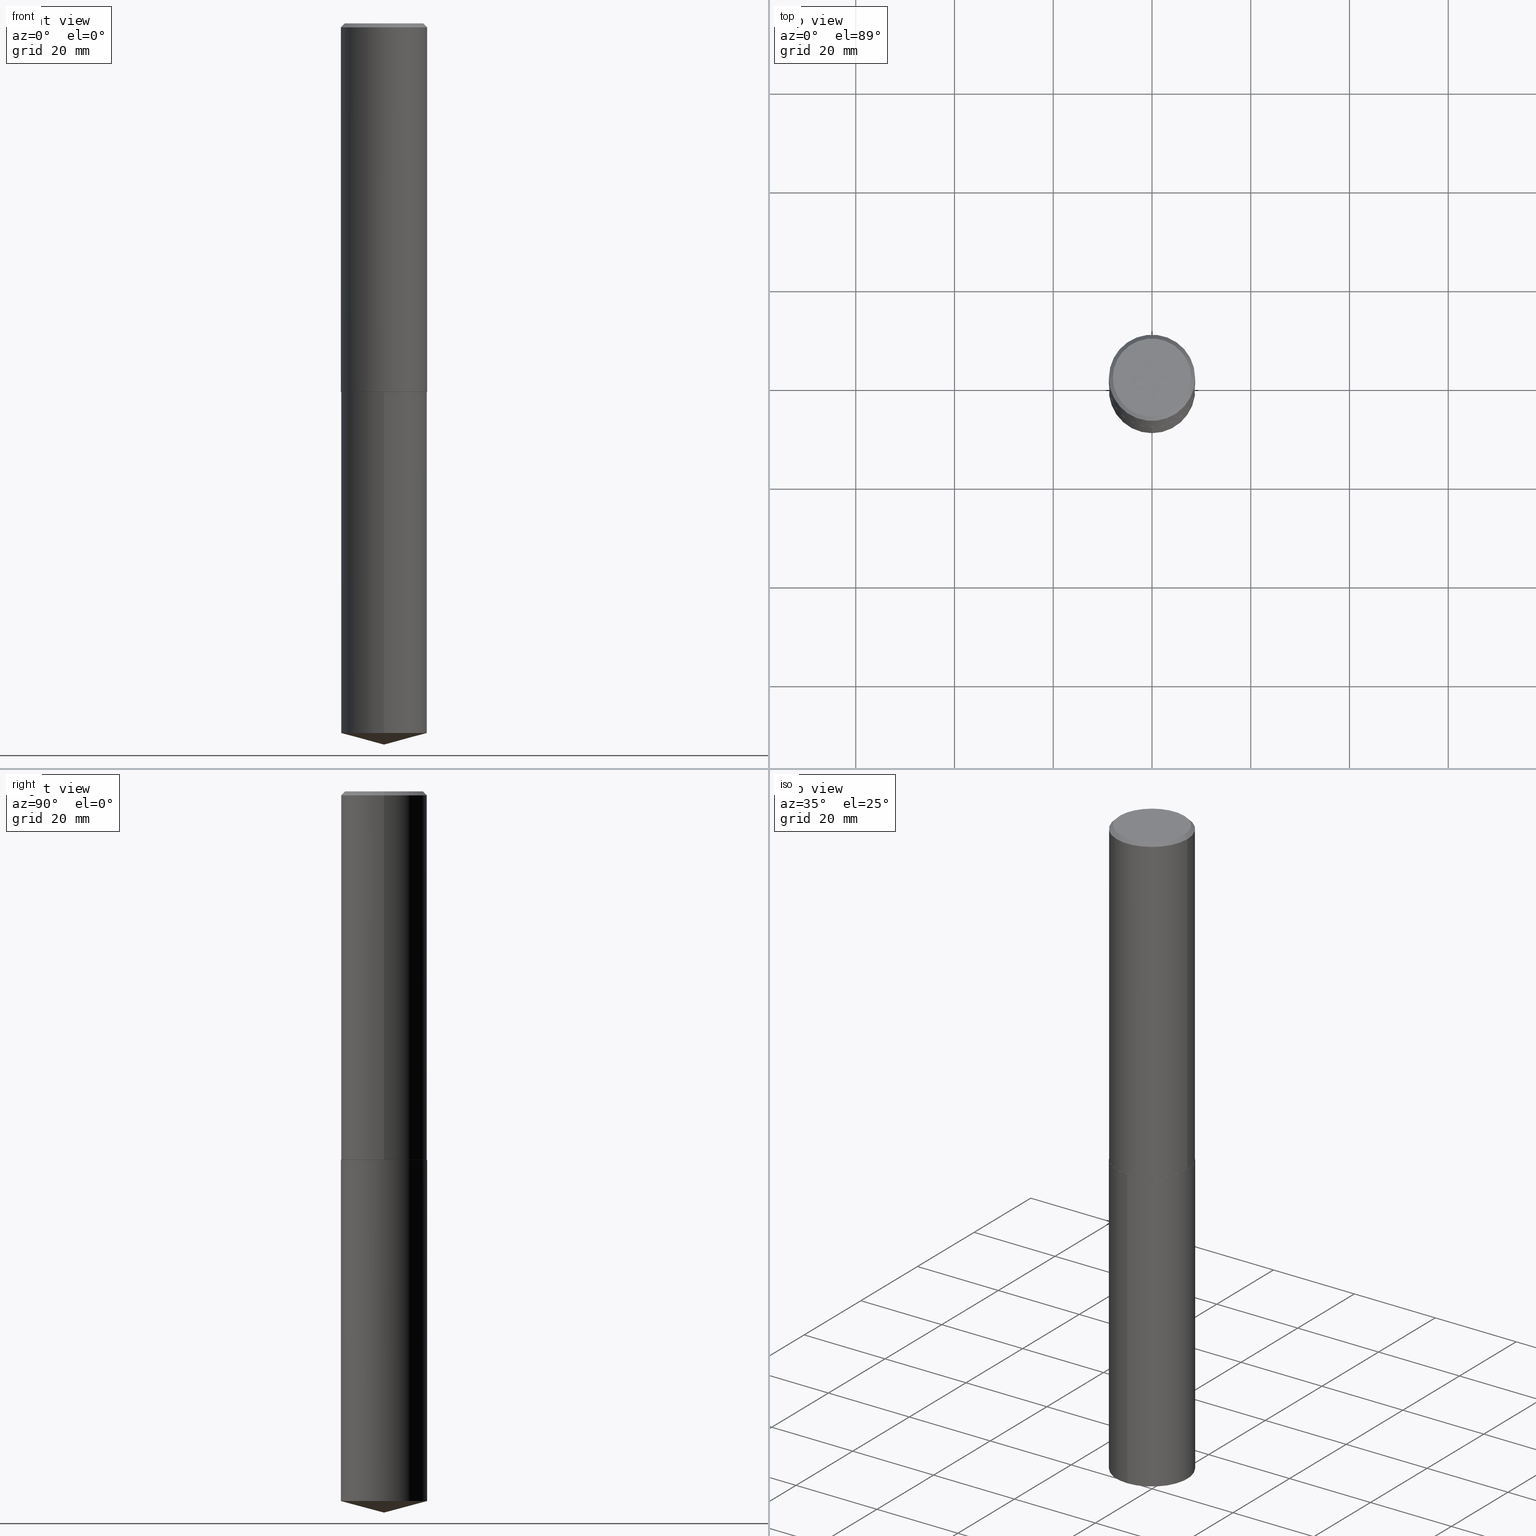
[diagram: canonical four-view strip — front | top / right | iso, engineering-drawing reading convention]
A machine part, canonical four-view strip (front | top / right | iso — engineering-drawing reading convention). The complete STEP part file that produces these views, byte-faithful:
ISO-10303-21;
HEADER;
FILE_DESCRIPTION (( 'STEP AP203' ),
    '1' );
FILE_NAME ('58102.STEP',
    '2024-04-23T02:02:48',
    ( '' ),
    ( '' ),
    'SwSTEP 2.0',
    'SolidWorks 2023',
    '' );
FILE_SCHEMA (( 'CONFIG_CONTROL_DESIGN' ));
ENDSEC;

DATA;
#1 = CARTESIAN_POINT ( 'NONE',  ( -2.400393420454582001E-15, -0.3437500000000102141, -2.937499999999998224 ) ) ;
#2 = APPLICATION_PROTOCOL_DEFINITION ( 'international standard', 'config_control_design', 1994, #27 ) ;
#3 = CARTESIAN_POINT ( 'NONE',  ( 7.183564618168836511E-29, -1.025622643285173815E-14, -2.937499999999999556 ) ) ;
#4 = LINE ( 'NONE', #243, #282 ) ;
#5 = DIRECTION ( 'NONE',  ( 1.000000000000000000, -6.982962677686266711E-15, 0.000000000000000000 ) ) ;
#6 = CARTESIAN_POINT ( 'NONE',  ( 7.183564618168836511E-29, -1.025622643285173815E-14, -2.937499999999999556 ) ) ;
#7 = EDGE_CURVE ( 'NONE', #53, #125, #204, .T. ) ;
#8 = CARTESIAN_POINT ( 'NONE',  ( 7.183564618168836511E-29, -1.025622643285173815E-14, -2.937499999999999556 ) ) ;
#9 = CALENDAR_DATE ( 2024, 22, 4 ) ;
#10 = DATE_TIME_ROLE ( 'classification_date' ) ;
#11 = PERSON_AND_ORGANIZATION_ROLE ( 'design_owner' ) ;
#12 = CARTESIAN_POINT ( 'NONE',  ( -4.679430540483315256E-47, 6.680986634214010139E-33, 1.913510623667735920E-18 ) ) ;
#13 = AXIS2_PLACEMENT_3D ( 'NONE', #367, #104, #35 ) ;
#14 = CYLINDRICAL_SURFACE ( 'NONE', #150, 0.3437500000000000000 ) ;
#15 = FACE_OUTER_BOUND ( 'NONE', #18, .T. ) ;
#16 = AXIS2_PLACEMENT_3D ( 'NONE', #192, #67, #200 ) ;
#17 = CC_DESIGN_PERSON_AND_ORGANIZATION_ASSIGNMENT ( #377, #260, ( #36 ) ) ;
#18 = EDGE_LOOP ( 'NONE', ( #298, #120, #62, #188 ) ) ;
#19 = EDGE_LOOP ( 'NONE', ( #129, #177, #293, #54 ) ) ;
#20 = VERTEX_POINT ( 'NONE', #307 ) ;
#21 = AXIS2_PLACEMENT_3D ( 'NONE', #77, #47, #179 ) ;
#22 = DATE_TIME_ROLE ( 'creation_date' ) ;
#23 = UNCERTAINTY_MEASURE_WITH_UNIT (LENGTH_MEASURE( 1.000000000000000082E-05 ), #259, 'distance_accuracy_value', 'NONE');
#24 = ORIENTED_EDGE ( 'NONE', *, *, #266, .T. ) ;
#25 = PERSON_AND_ORGANIZATION ( #183, #388 ) ;
#26 = DIRECTION ( 'NONE',  ( 0.000000000000000000, 0.000000000000000000, 1.000000000000000000 ) ) ;
#27 = APPLICATION_CONTEXT ( 'configuration controlled 3d designs of mechanical parts and assemblies' ) ;
#28 = CIRCLE ( 'NONE', #89, 0.3432500000000007767 ) ;
#29 = EDGE_CURVE ( 'NONE', #239, #325, #292, .T. ) ;
#30 = DIRECTION ( 'NONE',  ( 6.863315791527703726E-15, 0.9659258262890707547, 0.2588190451025115801 ) ) ;
#31 = DIRECTION ( 'NONE',  ( 2.438088387897960049E-29, -3.491481338843145188E-15, -1.000000000000000000 ) ) ;
#32 = DIRECTION ( 'NONE',  ( 1.000000000000000000, -6.982962677686265922E-15, 4.876176775795935793E-29 ) ) ;
#33 = CC_DESIGN_PERSON_AND_ORGANIZATION_ASSIGNMENT ( #207, #11, ( #385 ) ) ;
#34 = AXIS2_PLACEMENT_3D ( 'NONE', #6, #139, #32 ) ;
#35 = DIRECTION ( 'NONE',  ( -6.982962677686265922E-15, -1.000000000000000000, 3.178877665354778874E-15 ) ) ;
#36 = SECURITY_CLASSIFICATION ( '', '', #374 ) ;
#37 = DIRECTION ( 'NONE',  ( -2.445468806185136877E-29, 3.491481338843145188E-15, 1.000000000000000000 ) ) ;
#38 = CARTESIAN_POINT ( 'NONE',  ( -9.358861080966630512E-47, 1.336197326842802028E-32, 3.827021247335471839E-18 ) ) ;
#39 = PERSON_AND_ORGANIZATION_ROLE ( 'design_supplier' ) ;
#40 = DIMENSIONAL_EXPONENTS ( 1.000000000000000000, 0.000000000000000000, 0.000000000000000000, 0.000000000000000000, 0.000000000000000000, 0.000000000000000000, 0.000000000000000000 ) ;
#41 = DIRECTION ( 'NONE',  ( -2.445468806185136597E-29, 3.491481338843145583E-15, 1.000000000000000000 ) ) ;
#42 = DIRECTION ( 'NONE',  ( -6.982962677686265922E-15, -1.000000000000000000, 3.178877665354778874E-15 ) ) ;
#43 = APPROVAL_ROLE ( '' ) ;
#44 = EDGE_CURVE ( 'NONE', #153, #353, #65, .T. ) ;
#45 = FACE_OUTER_BOUND ( 'NONE', #154, .T. ) ;
#46 = CARTESIAN_POINT ( 'NONE',  ( 7.182341883765743709E-29, -1.025448069218231586E-14, -2.936999999999999389 ) ) ;
#47 = DIRECTION ( 'NONE',  ( 2.445828463241445010E-29, -3.490966289468102925E-15, -1.000000000000000000 ) ) ;
#48 = DIRECTION ( 'NONE',  ( -6.982962677686265922E-15, -1.000000000000000000, 3.178877665354778874E-15 ) ) ;
#49 = APPROVAL ( #66, 'UNSPECIFIED' ) ;
#50 = AXIS2_PLACEMENT_3D ( 'NONE', #38, #220, #105 ) ;
#51 = ORIENTED_EDGE ( 'NONE', *, *, #7, .F. ) ;
#52 = EDGE_CURVE ( 'NONE', #214, #53, #308, .T. ) ;
#53 = VERTEX_POINT ( 'NONE', #194 ) ;
#54 = ORIENTED_EDGE ( 'NONE', *, *, #156, .F. ) ;
#55 = PERSON_AND_ORGANIZATION_ROLE ( 'creator' ) ;
#56 = CC_DESIGN_APPROVAL ( #49, ( #36 ) ) ;
#57 = ORIENTED_EDGE ( 'NONE', *, *, #287, .T. ) ;
#58 = FACE_OUTER_BOUND ( 'NONE', #198, .T. ) ;
#59 = EDGE_LOOP ( 'NONE', ( #288, #330 ) ) ;
#60 = PRODUCT_DEFINITION_SHAPE ( 'NONE', 'NONE',  #203 ) ;
#61 = CIRCLE ( 'NONE', #213, 0.3437500000000000000 ) ;
#62 = ORIENTED_EDGE ( 'NONE', *, *, #236, .T. ) ;
#63 = CARTESIAN_POINT ( 'NONE',  ( -0.3432500000000007767, -7.814639265181078728E-15, -2.937499999999999556 ) ) ;
#64 = APPROVAL ( #273, 'UNSPECIFIED' ) ;
#65 = LINE ( 'NONE', #227, #267 ) ;
#66 = APPROVAL_STATUS ( 'not_yet_approved' ) ;
#67 = DIRECTION ( 'NONE',  ( -2.445468806185136597E-29, 3.491481338843145583E-15, 1.000000000000000000 ) ) ;
#68 = PERSON_AND_ORGANIZATION ( #183, #388 ) ;
#69 = CARTESIAN_POINT ( 'NONE',  ( 1.383717794050239088E-28, -1.975302482264516971E-14, -5.657892465101803658 ) ) ;
#70 = CIRCLE ( 'NONE', #303, 0.3125000000000000000 ) ;
#71 = DIRECTION ( 'NONE',  ( -1.000000000000000000, 6.982962677686265922E-15, 0.000000000000000000 ) ) ;
#72 = LENGTH_MEASURE_WITH_UNIT ( LENGTH_MEASURE( 0.02539999999999999897 ), #311 );
#73 = PLANE ( 'NONE',  #21 ) ;
#74 = DIRECTION ( 'NONE',  ( -1.000000000000000000, 6.982962677686265922E-15, 0.000000000000000000 ) ) ;
#75 = DIRECTION ( 'NONE',  ( -2.445468806185136597E-29, 3.491481338843145583E-15, 1.000000000000000000 ) ) ;
#76 = CONICAL_SURFACE ( 'NONE', #137, 146.9311341562585369, 1.308996938995753201 ) ;
#77 = CARTESIAN_POINT ( 'NONE',  ( 7.183564618168836511E-29, -1.025622643285173815E-14, -2.937499999999999556 ) ) ;
#78 = CIRCLE ( 'NONE', #184, 0.3437500000000000000 ) ;
#79 = DIRECTION ( 'NONE',  ( 1.000000000000000000, -6.982962677686265922E-15, 0.000000000000000000 ) ) ;
#80 = CARTESIAN_POINT ( 'NONE',  ( 7.182341883765743709E-29, -1.025448069218231586E-14, -2.936999999999999389 ) ) ;
#81 = ADVANCED_FACE ( 'NONE', ( #304 ), #161, .F. ) ;
#82 = CARTESIAN_POINT ( 'NONE',  ( 7.642090019328583394E-31, -1.091087918388487432E-16, -0.03125000000000012490 ) ) ;
#83 = VECTOR ( 'NONE', #345, 39.37007874015748143 ) ;
#84 = CC_DESIGN_APPROVAL ( #64, ( #203 ) ) ;
#85 = ORIENTED_EDGE ( 'NONE', *, *, #99, .F. ) ;
#86 = VERTEX_POINT ( 'NONE', #339 ) ;
#87 = AXIS2_PLACEMENT_3D ( 'NONE', #8, #281, #136 ) ;
#88 = DATE_AND_TIME ( #127, #111 ) ;
#89 = AXIS2_PLACEMENT_3D ( 'NONE', #175, #235, #348 ) ;
#90 = CARTESIAN_POINT ( 'NONE',  ( -8.223000201169867911E-28, 1.173650485736138248E-13, 33.62007874015748143 ) ) ;
#91 = ORIENTED_EDGE ( 'NONE', *, *, #291, .F. ) ;
#92 = CC_DESIGN_DATE_AND_TIME_ASSIGNMENT ( #88, #22, ( #203 ) ) ;
#93 = CARTESIAN_POINT ( 'NONE',  ( 1.406353219202438934E-28, -2.007305616444158856E-14, -5.750000000000000000 ) ) ;
#94 = EDGE_LOOP ( 'NONE', ( #24, #157, #51, #355 ) ) ;
#95 = LINE ( 'NONE', #1, #190 ) ;
#96 = DIRECTION ( 'NONE',  ( -2.445468806185136597E-29, 3.491481338843145583E-15, 1.000000000000000000 ) ) ;
#97 = APPROVAL_DATE_TIME ( #103, #64 ) ;
#98 = CIRCLE ( 'NONE', #323, 0.3437500000000000000 ) ;
#99 = EDGE_CURVE ( 'NONE', #242, #125, #4, .T. ) ;
#100 = AXIS2_PLACEMENT_3D ( 'NONE', #46, #286, #5 ) ;
#101 = DIRECTION ( 'NONE',  ( -2.445468806185136877E-29, 3.491481338843145188E-15, 1.000000000000000000 ) ) ;
#102 = DIRECTION ( 'NONE',  ( 1.000000000000000000, -6.982962677686266711E-15, 4.876176775795936353E-29 ) ) ;
#103 = DATE_AND_TIME ( #196, #155 ) ;
#104 = DIRECTION ( 'NONE',  ( -2.445828463241445570E-29, 3.490966289468102925E-15, 1.000000000000000000 ) ) ;
#105 = DIRECTION ( 'NONE',  ( 1.000000000000000000, -6.982962677686266711E-15, 4.876242311950517246E-29 ) ) ;
#106 = APPROVAL_DATE_TIME ( #146, #226 ) ;
#107 = DIRECTION ( 'NONE',  ( -2.445828463241445570E-29, 3.490966289468102925E-15, 1.000000000000000000 ) ) ;
#108 = LINE ( 'NONE', #138, #151 ) ;
#109 = DIRECTION ( 'NONE',  ( -2.445468806185136597E-29, 3.491481338843145583E-15, 1.000000000000000000 ) ) ;
#110 = DIRECTION ( 'NONE',  ( 1.000000000000000000, -6.982962677686265922E-15, 0.000000000000000000 ) ) ;
#111 = LOCAL_TIME ( 22, 2, 47.00000000000000000, #191 ) ;
#112 = EDGE_CURVE ( 'NONE', #242, #214, #275, .T. ) ;
#113 = LINE ( 'NONE', #173, #313 ) ;
#114 = PLANE ( 'NONE',  #167 ) ;
#115 = CARTESIAN_POINT ( 'NONE',  ( 0.000000000000000000, 0.000000000000000000, 0.000000000000000000 ) ) ;
#116 = EDGE_CURVE ( 'NONE', #86, #153, #98, .T. ) ;
#117 = DESIGN_CONTEXT ( 'detailed design', #27, 'design' ) ;
#118 = CLOSED_SHELL ( 'NONE', ( #375, #148, #349, #81, #186, #143, #249, #306 ) ) ;
#119 = CARTESIAN_POINT ( 'NONE',  ( -0.3437500000000000000, 2.291284628615805081E-15, -0.03125000000000012490 ) ) ;
#120 = ORIENTED_EDGE ( 'NONE', *, *, #263, .T. ) ;
#121 = EDGE_CURVE ( 'NONE', #353, #352, #158, .T. ) ;
#122 = CLOSED_SHELL ( 'NONE', ( #384, #193, #354, #160, #171 ) ) ;
#123 = EDGE_LOOP ( 'NONE', ( #327, #317 ) ) ;
#124 = CIRCLE ( 'NONE', #131, 0.3437500000000003886 ) ;
#125 = VERTEX_POINT ( 'NONE', #252 ) ;
#126 = ORIENTED_EDGE ( 'NONE', *, *, #112, .T. ) ;
#127 = CALENDAR_DATE ( 2024, 22, 4 ) ;
#128 = CC_DESIGN_PERSON_AND_ORGANIZATION_ASSIGNMENT ( #315, #343, ( #351 ) ) ;
#129 = ORIENTED_EDGE ( 'NONE', *, *, #255, .F. ) ;
#130 = COORDINATED_UNIVERSAL_TIME_OFFSET ( 5, 0, .BEHIND. ) ;
#131 = AXIS2_PLACEMENT_3D ( 'NONE', #80, #41, #182 ) ;
#132 = ORIENTED_EDGE ( 'NONE', *, *, #116, .F. ) ;
#133 = CARTESIAN_POINT ( 'NONE',  ( 0.000000000000000000, 0.000000000000000000, 0.000000000000000000 ) ) ;
#134 = DIRECTION ( 'NONE',  ( -2.445828463241445851E-29, 3.490966289468102925E-15, 1.000000000000000000 ) ) ;
#135 = PERSON_AND_ORGANIZATION ( #183, #388 ) ;
#136 = DIRECTION ( 'NONE',  ( -6.982962677686265922E-15, -1.000000000000000000, 3.178877665354778874E-15 ) ) ;
#137 = AXIS2_PLACEMENT_3D ( 'NONE', #90, #363, #219 ) ;
#138 = CARTESIAN_POINT ( 'NONE',  ( 0.3437500000000000000, -2.467404978572812681E-15, -0.03125000000000012490 ) ) ;
#139 = DIRECTION ( 'NONE',  ( -2.438088387897960049E-29, 3.491481338843145188E-15, 1.000000000000000000 ) ) ;
#140 = CYLINDRICAL_SURFACE ( 'NONE', #342, 0.3437500000000000000 ) ;
#141 = CARTESIAN_POINT ( 'NONE',  ( 0.3437500000000003886, -1.265487411263697241E-14, -2.936999999999999389 ) ) ;
#142 = DIRECTION ( 'NONE',  ( -2.445468806185136597E-29, 3.491481338843145583E-15, 1.000000000000000000 ) ) ;
#143 = ADVANCED_FACE ( 'NONE', ( #58 ), #248, .T. ) ;
#144 = DATE_AND_TIME ( #9, #262 ) ;
#145 = FACE_OUTER_BOUND ( 'NONE', #261, .T. ) ;
#146 = DATE_AND_TIME ( #256, #159 ) ;
#147 = COORDINATED_UNIVERSAL_TIME_OFFSET ( 5, 0, .BEHIND. ) ;
#148 = ADVANCED_FACE ( 'NONE', ( #366 ), #251, .T. ) ;
#149 = CARTESIAN_POINT ( 'NONE',  ( 7.642090019328583394E-31, -1.091087918388487432E-16, -0.03125000000000012490 ) ) ;
#150 = AXIS2_PLACEMENT_3D ( 'NONE', #321, #376, #48 ) ;
#151 = VECTOR ( 'NONE', #231, 39.37007874015748143 ) ;
#152 = FACE_OUTER_BOUND ( 'NONE', #163, .T. ) ;
#153 = VERTEX_POINT ( 'NONE', #221 ) ;
#154 = EDGE_LOOP ( 'NONE', ( #382, #326, #270, #265 ) ) ;
#155 = LOCAL_TIME ( 22, 2, 47.00000000000000000, #362 ) ;
#156 = EDGE_CURVE ( 'NONE', #239, #381, #336, .T. ) ;
#157 = ORIENTED_EDGE ( 'NONE', *, *, #99, .T. ) ;
#158 = CIRCLE ( 'NONE', #87, 0.3437500000000000000 ) ;
#159 = LOCAL_TIME ( 22, 2, 47.00000000000000000, #130 ) ;
#160 = ADVANCED_FACE ( 'NONE', ( #15 ), #14, .T. ) ;
#161 = PLANE ( 'NONE',  #34 ) ;
#162 = DIRECTION ( 'NONE',  ( -2.445828463241445570E-29, 3.490966289468102925E-15, 1.000000000000000000 ) ) ;
#163 = EDGE_LOOP ( 'NONE', ( #85, #126, #387, #299 ) ) ;
#164 = CARTESIAN_POINT ( 'NONE',  ( 0.3432500000000007767, -1.265312837196755327E-14, -2.937499999999999556 ) ) ;
#165 = DIRECTION ( 'NONE',  ( -2.445828463241445570E-29, 3.490966289468102925E-15, 1.000000000000000000 ) ) ;
#166 = APPROVAL_DATE_TIME ( #144, #49 ) ;
#167 = AXIS2_PLACEMENT_3D ( 'NONE', #12, #31, #208 ) ;
#168 = APPLICATION_PROTOCOL_DEFINITION ( 'international standard', 'config_control_design', 1994, #199 ) ;
#169 = CARTESIAN_POINT ( 'NONE',  ( 1.383717794050239088E-28, -1.975302482264516971E-14, -5.657892465101803658 ) ) ;
#170 = SHAPE_DEFINITION_REPRESENTATION ( #60, #229 ) ;
#171 = ADVANCED_FACE ( 'NONE', ( #211 ), #73, .F. ) ;
#172 = CARTESIAN_POINT ( 'NONE',  ( 7.642090019328583394E-31, -1.091087918388487432E-16, -0.03125000000000012490 ) ) ;
#173 = CARTESIAN_POINT ( 'NONE',  ( -0.3437500000000001665, 2.442490654175345572E-15, -1.690883937275124756E-29 ) ) ;
#174 = CARTESIAN_POINT ( 'NONE',  ( 7.182341883765743709E-29, -1.025448069218231586E-14, -2.936999999999999389 ) ) ;
#175 = CARTESIAN_POINT ( 'NONE',  ( 7.183564618168836511E-29, -1.025622643285173815E-14, -2.937499999999999556 ) ) ;
#176 = CARTESIAN_POINT ( 'NONE',  ( -0.3437500000000000000, -2.739304087835235330E-15, -0.03125000000000012490 ) ) ;
#177 = ORIENTED_EDGE ( 'NONE', *, *, #360, .T. ) ;
#178 =( GEOMETRIC_REPRESENTATION_CONTEXT ( 3 ) GLOBAL_UNCERTAINTY_ASSIGNED_CONTEXT ( ( #23 ) ) GLOBAL_UNIT_ASSIGNED_CONTEXT ( ( #259, #373, #365 ) ) REPRESENTATION_CONTEXT ( 'NONE', 'WORKASPACE' ) );
#179 = DIRECTION ( 'NONE',  ( 6.982962677686265922E-15, 1.000000000000000000, -3.490966289468102925E-15 ) ) ;
#180 = CC_DESIGN_DATE_AND_TIME_ASSIGNMENT ( #253, #10, ( #36 ) ) ;
#181 = ORIENTED_EDGE ( 'NONE', *, *, #236, .F. ) ;
#182 = DIRECTION ( 'NONE',  ( 1.000000000000000000, -6.982962677686266711E-15, 0.000000000000000000 ) ) ;
#183 = PERSON ( 'UNSPECIFIED', 'UNSPECIFIED', 'UNSPECIFIED', ('UNSPECIFIED'), ('UNSPECIFIED'), ('UNSPECIFIED') ) ;
#184 = AXIS2_PLACEMENT_3D ( 'NONE', #172, #142, #110 ) ;
#185 = EDGE_LOOP ( 'NONE', ( #357, #295, #202, #332 ) ) ;
#186 = ADVANCED_FACE ( 'NONE', ( #152 ), #296, .T. ) ;
#187 = ORIENTED_EDGE ( 'NONE', *, *, #189, .T. ) ;
#188 = ORIENTED_EDGE ( 'NONE', *, *, #121, .F. ) ;
#189 = EDGE_CURVE ( 'NONE', #20, #153, #305, .T. ) ;
#190 = VECTOR ( 'NONE', #134, 39.37007874015748143 ) ;
#191 = COORDINATED_UNIVERSAL_TIME_OFFSET ( 5, 0, .BEHIND. ) ;
#192 = CARTESIAN_POINT ( 'NONE',  ( 7.182341883765743709E-29, -1.025448069218231586E-14, -2.936999999999999389 ) ) ;
#193 = ADVANCED_FACE ( 'NONE', ( #389 ), #76, .T. ) ;
#194 = CARTESIAN_POINT ( 'NONE',  ( 0.3437500000000003886, -1.265487411263697241E-14, -2.936999999999999389 ) ) ;
#195 = VECTOR ( 'NONE', #101, 39.37007874015748143 ) ;
#196 = CALENDAR_DATE ( 2024, 22, 4 ) ;
#197 = CC_DESIGN_SECURITY_CLASSIFICATION ( #36, ( #351 ) ) ;
#198 = EDGE_LOOP ( 'NONE', ( #233, #57, #216, #91 ) ) ;
#199 = APPLICATION_CONTEXT ( 'configuration controlled 3d designs of mechanical parts and assemblies' ) ;
#200 = DIRECTION ( 'NONE',  ( 1.000000000000000000, -6.982962677686266711E-15, 0.000000000000000000 ) ) ;
#201 = APPROVAL_ROLE ( '' ) ;
#202 = ORIENTED_EDGE ( 'NONE', *, *, #294, .F. ) ;
#203 = PRODUCT_DEFINITION ( 'UNKNOWN', '', #351, #117 ) ;
#204 = CIRCLE ( 'NONE', #16, 0.3437500000000003886 ) ;
#205 = CONICAL_SURFACE ( 'NONE', #228, 146.9311341562585369, 1.308996938995753201 ) ;
#206 = CARTESIAN_POINT ( 'NONE',  ( -2.400393420454582001E-15, -0.3437500000000102141, -2.937499999999998224 ) ) ;
#207 = PERSON_AND_ORGANIZATION ( #183, #388 ) ;
#208 = DIRECTION ( 'NONE',  ( -1.000000000000000000, 6.982962677686265922E-15, -4.876176775795935793E-29 ) ) ;
#209 = DIRECTION ( 'NONE',  ( -2.445468806185136597E-29, 3.491481338843145583E-15, 1.000000000000000000 ) ) ;
#210 = CARTESIAN_POINT ( 'NONE',  ( -9.358861080966630512E-47, 1.336197326842802028E-32, 3.827021247335471839E-18 ) ) ;
#211 = FACE_OUTER_BOUND ( 'NONE', #215, .T. ) ;
#212 = AXIS2_PLACEMENT_3D ( 'NONE', #361, #96, #371 ) ;
#213 = AXIS2_PLACEMENT_3D ( 'NONE', #69, #107, #285 ) ;
#214 = VERTEX_POINT ( 'NONE', #164 ) ;
#215 = EDGE_LOOP ( 'NONE', ( #237, #346 ) ) ;
#216 = ORIENTED_EDGE ( 'NONE', *, *, #230, .T. ) ;
#217 = PERSON_AND_ORGANIZATION ( #183, #388 ) ;
#218 = ORIENTED_EDGE ( 'NONE', *, *, #116, .T. ) ;
#219 = DIRECTION ( 'NONE',  ( -6.982962677686265922E-15, -1.000000000000000000, 3.510303681827556025E-15 ) ) ;
#220 = DIRECTION ( 'NONE',  ( -2.445468806185136597E-29, 3.491481338843145583E-15, 1.000000000000000000 ) ) ;
#221 = CARTESIAN_POINT ( 'NONE',  ( 2.442490654175483228E-15, 0.3437499999999802935, -5.657892465101804547 ) ) ;
#222 = APPROVAL_PERSON_ORGANIZATION ( #217, #226, #272 ) ;
#223 = CARTESIAN_POINT ( 'NONE',  ( -0.3125000000000000000, 2.236730232696381714E-15, 3.827021247320020488E-18 ) ) ;
#224 = CARTESIAN_POINT ( 'NONE',  ( 2.442490654175483228E-15, 0.3437499999999897304, -2.937500000000000444 ) ) ;
#225 = PERSON_AND_ORGANIZATION ( #183, #388 ) ;
#226 = APPROVAL ( #300, 'UNSPECIFIED' ) ;
#227 = CARTESIAN_POINT ( 'NONE',  ( 2.442490654175415781E-15, 0.3437499999999897304, -2.937500000000000444 ) ) ;
#228 = AXIS2_PLACEMENT_3D ( 'NONE', #344, #162, #316 ) ;
#229 = ADVANCED_BREP_SHAPE_REPRESENTATION ( '58102', ( #380, #247, #276 ), #178 ) ;
#230 = EDGE_CURVE ( 'NONE', #53, #238, #333, .T. ) ;
#231 = DIRECTION ( 'NONE',  ( 0.7071067811865457964, -7.319954787623249734E-15, -0.7071067811865492381 ) ) ;
#232 = DIRECTION ( 'NONE',  ( 2.445468806185136597E-29, -3.491481338843145583E-15, -1.000000000000000000 ) ) ;
#233 = ORIENTED_EDGE ( 'NONE', *, *, #331, .F. ) ;
#234 = LINE ( 'NONE', #289, #324 ) ;
#235 = DIRECTION ( 'NONE',  ( -2.445468806185136597E-29, 3.491481338843145583E-15, 1.000000000000000000 ) ) ;
#236 = EDGE_CURVE ( 'NONE', #86, #352, #95, .T. ) ;
#237 = ORIENTED_EDGE ( 'NONE', *, *, #244, .T. ) ;
#238 = VERTEX_POINT ( 'NONE', #337 ) ;
#239 = VERTEX_POINT ( 'NONE', #223 ) ;
#240 = AXIS2_PLACEMENT_3D ( 'NONE', #174, #358, #277 ) ;
#241 = AXIS2_PLACEMENT_3D ( 'NONE', #368, #254, #71 ) ;
#242 = VERTEX_POINT ( 'NONE', #63 ) ;
#243 = CARTESIAN_POINT ( 'NONE',  ( -0.3437500000000003886, -7.811990038006968315E-15, -2.936999999999999389 ) ) ;
#244 = EDGE_CURVE ( 'NONE', #352, #353, #356, .T. ) ;
#245 = CARTESIAN_POINT ( 'NONE',  ( 0.3437500000000001665, -2.400393420454655365E-15, 1.676185766679853980E-29 ) ) ;
#246 = DIRECTION ( 'NONE',  ( -2.445468806185136597E-29, 3.491481338843145583E-15, 1.000000000000000000 ) ) ;
#247 = MANIFOLD_SOLID_BREP ( 'Body-Move/Copy2[2]', #118 ) ;
#248 = CYLINDRICAL_SURFACE ( 'NONE', #347, 0.3437500000000001665 ) ;
#249 = ADVANCED_FACE ( 'NONE', ( #45 ), #290, .T. ) ;
#250 = CARTESIAN_POINT ( 'NONE',  ( 0.3125000000000000000, -2.305655301438208344E-15, 3.827021247351164316E-18 ) ) ;
#251 = CYLINDRICAL_SURFACE ( 'NONE', #212, 0.3437500000000001665 ) ;
#252 = CARTESIAN_POINT ( 'NONE',  ( -0.3437500000000003886, -7.811990038006968315E-15, -2.936999999999999389 ) ) ;
#253 = DATE_AND_TIME ( #340, #258 ) ;
#254 = DIRECTION ( 'NONE',  ( 2.445468806185136597E-29, -3.491481338843145583E-15, -1.000000000000000000 ) ) ;
#255 = EDGE_CURVE ( 'NONE', #325, #239, #70, .T. ) ;
#256 = CALENDAR_DATE ( 2024, 22, 4 ) ;
#257 = VECTOR ( 'NONE', #334, 39.37007874015748854 ) ;
#258 = LOCAL_TIME ( 22, 2, 47.00000000000000000, #147 ) ;
#259 =( CONVERSION_BASED_UNIT ( 'INCH', #72 ) LENGTH_UNIT ( ) NAMED_UNIT ( #40 ) );
#260 = PERSON_AND_ORGANIZATION_ROLE ( 'classification_officer' ) ;
#261 = EDGE_LOOP ( 'NONE', ( #264, #269, #312 ) ) ;
#262 = LOCAL_TIME ( 22, 2, 47.00000000000000000, #309 ) ;
#263 = EDGE_CURVE ( 'NONE', #153, #86, #61, .T. ) ;
#264 = ORIENTED_EDGE ( 'NONE', *, *, #189, .F. ) ;
#265 = ORIENTED_EDGE ( 'NONE', *, *, #291, .T. ) ;
#266 = EDGE_CURVE ( 'NONE', #214, #242, #28, .T. ) ;
#267 = VECTOR ( 'NONE', #341, 39.37007874015748143 ) ;
#268 = AXIS2_PLACEMENT_3D ( 'NONE', #82, #209, #79 ) ;
#269 = ORIENTED_EDGE ( 'NONE', *, *, #301, .T. ) ;
#270 = ORIENTED_EDGE ( 'NONE', *, *, #156, .T. ) ;
#271 = EDGE_LOOP ( 'NONE', ( #218, #359, #386, #181 ) ) ;
#272 = APPROVAL_ROLE ( '' ) ;
#273 = APPROVAL_STATUS ( 'not_yet_approved' ) ;
#274 = CC_DESIGN_PERSON_AND_ORGANIZATION_ASSIGNMENT ( #68, #39, ( #351 ) ) ;
#275 = CIRCLE ( 'NONE', #319, 0.3432500000000007767 ) ;
#276 = AXIS2_PLACEMENT_3D ( 'NONE', #115, #26, #328 ) ;
#277 = DIRECTION ( 'NONE',  ( 1.000000000000000000, -6.982962677686266711E-15, 0.000000000000000000 ) ) ;
#278 = DIRECTION ( 'NONE',  ( -0.7071067811861611041, 7.493145998868957876E-15, 0.7071067811869338193 ) ) ;
#279 = ORIENTED_EDGE ( 'NONE', *, *, #301, .F. ) ;
#280 = FACE_OUTER_BOUND ( 'NONE', #94, .T. ) ;
#281 = DIRECTION ( 'NONE',  ( -2.445828463241445570E-29, 3.490966289468102925E-15, 1.000000000000000000 ) ) ;
#282 = VECTOR ( 'NONE', #278, 39.37007874015748854 ) ;
#283 = DIRECTION ( 'NONE',  ( -2.445828463241445570E-29, 3.490966289468102925E-15, 1.000000000000000000 ) ) ;
#284 = DIRECTION ( 'NONE',  ( -6.982962677686265922E-15, -1.000000000000000000, 3.178877665354778874E-15 ) ) ;
#285 = DIRECTION ( 'NONE',  ( -6.982962677686265922E-15, -1.000000000000000000, 3.178877665354778874E-15 ) ) ;
#286 = DIRECTION ( 'NONE',  ( -2.445468806185136597E-29, 3.491481338843145583E-15, 1.000000000000000000 ) ) ;
#287 = EDGE_CURVE ( 'NONE', #125, #53, #124, .T. ) ;
#288 = ORIENTED_EDGE ( 'NONE', *, *, #266, .F. ) ;
#289 = CARTESIAN_POINT ( 'NONE',  ( 1.406140067843249681E-28, -2.007608207951996536E-14, -5.750000000000000000 ) ) ;
#290 = CONICAL_SURFACE ( 'NONE', #372, 0.3437500000000000000, 0.7853981633974458365 ) ;
#291 = EDGE_CURVE ( 'NONE', #381, #238, #78, .T. ) ;
#292 = CIRCLE ( 'NONE', #50, 0.3125000000000000000 ) ;
#293 = ORIENTED_EDGE ( 'NONE', *, *, #294, .T. ) ;
#294 = EDGE_CURVE ( 'NONE', #238, #381, #335, .T. ) ;
#295 = ORIENTED_EDGE ( 'NONE', *, *, #331, .T. ) ;
#296 = CONICAL_SURFACE ( 'NONE', #240, 0.3437500000000003886, 0.7853981633969019382 ) ;
#297 = CONICAL_SURFACE ( 'NONE', #241, 0.3437500000000000000, 0.7853981633974458365 ) ;
#298 = ORIENTED_EDGE ( 'NONE', *, *, #44, .F. ) ;
#299 = ORIENTED_EDGE ( 'NONE', *, *, #287, .F. ) ;
#300 = APPROVAL_STATUS ( 'not_yet_approved' ) ;
#301 = EDGE_CURVE ( 'NONE', #20, #86, #234, .T. ) ;
#302 = CARTESIAN_POINT ( 'NONE',  ( 7.183564618168836511E-29, -1.025622643285173815E-14, -2.937499999999999556 ) ) ;
#303 = AXIS2_PLACEMENT_3D ( 'NONE', #210, #75, #320 ) ;
#304 = FACE_OUTER_BOUND ( 'NONE', #59, .T. ) ;
#305 = LINE ( 'NONE', #93, #350 ) ;
#306 = ADVANCED_FACE ( 'NONE', ( #318 ), #114, .F. ) ;
#307 = CARTESIAN_POINT ( 'NONE',  ( 1.406351366363831203E-28, -2.007305616444158856E-14, -5.750000000000000000 ) ) ;
#308 = LINE ( 'NONE', #141, #257 ) ;
#309 = COORDINATED_UNIVERSAL_TIME_OFFSET ( 5, 0, .BEHIND. ) ;
#310 = MECHANICAL_CONTEXT ( 'NONE', #199, 'mechanical' ) ;
#311 =( LENGTH_UNIT ( ) NAMED_UNIT ( * ) SI_UNIT ( $, .METRE. ) );
#312 = ORIENTED_EDGE ( 'NONE', *, *, #263, .F. ) ;
#313 = VECTOR ( 'NONE', #37, 39.37007874015748143 ) ;
#314 = FACE_OUTER_BOUND ( 'NONE', #271, .T. ) ;
#315 = PERSON_AND_ORGANIZATION ( #183, #388 ) ;
#316 = DIRECTION ( 'NONE',  ( -6.982962677686265922E-15, -1.000000000000000000, 3.510303681827556025E-15 ) ) ;
#317 = ORIENTED_EDGE ( 'NONE', *, *, #255, .T. ) ;
#318 = FACE_OUTER_BOUND ( 'NONE', #123, .T. ) ;
#319 = AXIS2_PLACEMENT_3D ( 'NONE', #302, #109, #390 ) ;
#320 = DIRECTION ( 'NONE',  ( 1.000000000000000000, -6.982962677686266711E-15, 4.876242311950517246E-29 ) ) ;
#321 = CARTESIAN_POINT ( 'NONE',  ( 7.183564618168836511E-29, -1.025622643285173815E-14, -2.937499999999999556 ) ) ;
#322 = CC_DESIGN_PERSON_AND_ORGANIZATION_ASSIGNMENT ( #25, #55, ( #203 ) ) ;
#323 = AXIS2_PLACEMENT_3D ( 'NONE', #169, #165, #284 ) ;
#324 = VECTOR ( 'NONE', #378, 39.37007874015748143 ) ;
#325 = VERTEX_POINT ( 'NONE', #250 ) ;
#326 = ORIENTED_EDGE ( 'NONE', *, *, #29, .F. ) ;
#327 = ORIENTED_EDGE ( 'NONE', *, *, #29, .T. ) ;
#328 = DIRECTION ( 'NONE',  ( 1.000000000000000000, 0.000000000000000000, 0.000000000000000000 ) ) ;
#329 = CC_DESIGN_APPROVAL ( #226, ( #351 ) ) ;
#330 = ORIENTED_EDGE ( 'NONE', *, *, #112, .F. ) ;
#331 = EDGE_CURVE ( 'NONE', #125, #381, #113, .T. ) ;
#332 = ORIENTED_EDGE ( 'NONE', *, *, #230, .F. ) ;
#333 = LINE ( 'NONE', #245, #195 ) ;
#334 = DIRECTION ( 'NONE',  ( 0.7071067811861611041, -2.468850131078209810E-15, 0.7071067811869338193 ) ) ;
#335 = CIRCLE ( 'NONE', #268, 0.3437500000000000000 ) ;
#336 = LINE ( 'NONE', #119, #83 ) ;
#337 = CARTESIAN_POINT ( 'NONE',  ( 0.3437500000000000000, -2.509502212293502494E-15, -0.03125000000000012490 ) ) ;
#338 = FACE_OUTER_BOUND ( 'NONE', #19, .T. ) ;
#339 = CARTESIAN_POINT ( 'NONE',  ( -2.400393420454516131E-15, -0.3437500000000198730, -5.657892465101801882 ) ) ;
#340 = CALENDAR_DATE ( 2024, 22, 4 ) ;
#341 = DIRECTION ( 'NONE',  ( -2.445828463241445851E-29, 3.490966289468102925E-15, 1.000000000000000000 ) ) ;
#342 = AXIS2_PLACEMENT_3D ( 'NONE', #3, #283, #42 ) ;
#343 = PERSON_AND_ORGANIZATION_ROLE ( 'creator' ) ;
#344 = CARTESIAN_POINT ( 'NONE',  ( -8.223000201169867911E-28, 1.173650485736138248E-13, 33.62007874015748143 ) ) ;
#345 = DIRECTION ( 'NONE',  ( -0.7071067811865457964, 2.468850131082238917E-15, -0.7071067811865492381 ) ) ;
#346 = ORIENTED_EDGE ( 'NONE', *, *, #121, .T. ) ;
#347 = AXIS2_PLACEMENT_3D ( 'NONE', #133, #246, #102 ) ;
#348 = DIRECTION ( 'NONE',  ( 1.000000000000000000, -6.982962677686265133E-15, 0.000000000000000000 ) ) ;
#349 = ADVANCED_FACE ( 'NONE', ( #280 ), #379, .T. ) ;
#350 = VECTOR ( 'NONE', #30, 39.37007874015748143 ) ;
#351 = PRODUCT_DEFINITION_FORMATION_WITH_SPECIFIED_SOURCE ( 'ANY', '', #385, .NOT_KNOWN. ) ;
#352 = VERTEX_POINT ( 'NONE', #206 ) ;
#353 = VERTEX_POINT ( 'NONE', #224 ) ;
#354 = ADVANCED_FACE ( 'NONE', ( #145 ), #205, .T. ) ;
#355 = ORIENTED_EDGE ( 'NONE', *, *, #52, .F. ) ;
#356 = CIRCLE ( 'NONE', #13, 0.3437500000000000000 ) ;
#357 = ORIENTED_EDGE ( 'NONE', *, *, #7, .T. ) ;
#358 = DIRECTION ( 'NONE',  ( -2.445468806185136597E-29, 3.491481338843145583E-15, 1.000000000000000000 ) ) ;
#359 = ORIENTED_EDGE ( 'NONE', *, *, #44, .T. ) ;
#360 = EDGE_CURVE ( 'NONE', #325, #238, #108, .T. ) ;
#361 = CARTESIAN_POINT ( 'NONE',  ( 0.000000000000000000, 0.000000000000000000, 0.000000000000000000 ) ) ;
#362 = COORDINATED_UNIVERSAL_TIME_OFFSET ( 5, 0, .BEHIND. ) ;
#363 = DIRECTION ( 'NONE',  ( -2.445828463241445570E-29, 3.490966289468102925E-15, 1.000000000000000000 ) ) ;
#364 = APPROVAL_PERSON_ORGANIZATION ( #225, #49, #201 ) ;
#365 =( NAMED_UNIT ( * ) SI_UNIT ( $, .STERADIAN. ) SOLID_ANGLE_UNIT ( ) );
#366 = FACE_OUTER_BOUND ( 'NONE', #185, .T. ) ;
#367 = CARTESIAN_POINT ( 'NONE',  ( 7.183564618168836511E-29, -1.025622643285173815E-14, -2.937499999999999556 ) ) ;
#368 = CARTESIAN_POINT ( 'NONE',  ( 7.642090019328583394E-31, -1.091087918388487432E-16, -0.03125000000000012490 ) ) ;
#369 = EDGE_LOOP ( 'NONE', ( #279, #187, #132 ) ) ;
#370 = PRODUCT_RELATED_PRODUCT_CATEGORY ( 'detail', '', ( #385 ) ) ;
#371 = DIRECTION ( 'NONE',  ( 1.000000000000000000, -6.982962677686266711E-15, 4.876176775795936353E-29 ) ) ;
#372 = AXIS2_PLACEMENT_3D ( 'NONE', #149, #232, #74 ) ;
#373 =( NAMED_UNIT ( * ) PLANE_ANGLE_UNIT ( ) SI_UNIT ( $, .RADIAN. ) );
#374 = SECURITY_CLASSIFICATION_LEVEL ( 'unclassified' ) ;
#375 = ADVANCED_FACE ( 'NONE', ( #338 ), #297, .T. ) ;
#376 = DIRECTION ( 'NONE',  ( -2.445828463241445570E-29, 3.490966289468102925E-15, 1.000000000000000000 ) ) ;
#377 = PERSON_AND_ORGANIZATION ( #183, #388 ) ;
#378 = DIRECTION ( 'NONE',  ( -6.745023994389849388E-15, -0.9659258262890689783, 0.2588190451025183525 ) ) ;
#379 = CONICAL_SURFACE ( 'NONE', #100, 0.3437500000000003886, 0.7853981633969019382 ) ;
#380 = MANIFOLD_SOLID_BREP ( 'Body-Move/Copy2[1]', #122 ) ;
#381 = VERTEX_POINT ( 'NONE', #176 ) ;
#382 = ORIENTED_EDGE ( 'NONE', *, *, #360, .F. ) ;
#383 = APPROVAL_PERSON_ORGANIZATION ( #135, #64, #43 ) ;
#384 = ADVANCED_FACE ( 'NONE', ( #314 ), #140, .T. ) ;
#385 = PRODUCT ( '58102', '58102', '', ( #310 ) ) ;
#386 = ORIENTED_EDGE ( 'NONE', *, *, #244, .F. ) ;
#387 = ORIENTED_EDGE ( 'NONE', *, *, #52, .T. ) ;
#388 = ORGANIZATION ( 'UNSPECIFIED', 'UNSPECIFIED', '' ) ;
#389 = FACE_OUTER_BOUND ( 'NONE', #369, .T. ) ;
#390 = DIRECTION ( 'NONE',  ( 1.000000000000000000, -6.982962677686265133E-15, 0.000000000000000000 ) ) ;
ENDSEC;
END-ISO-10303-21;
